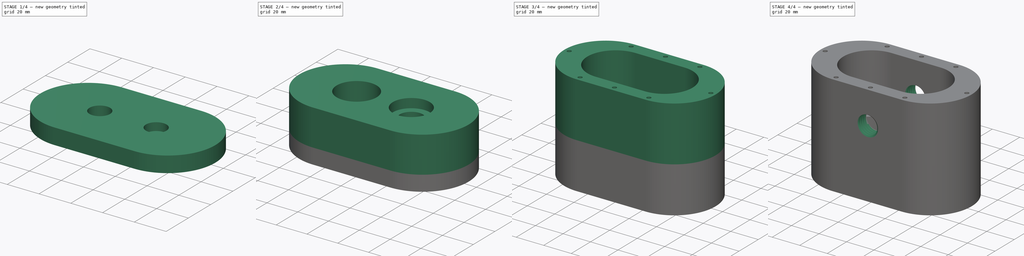
[diagram: build sequence overview — one tinted view per stage of 4, left to right]
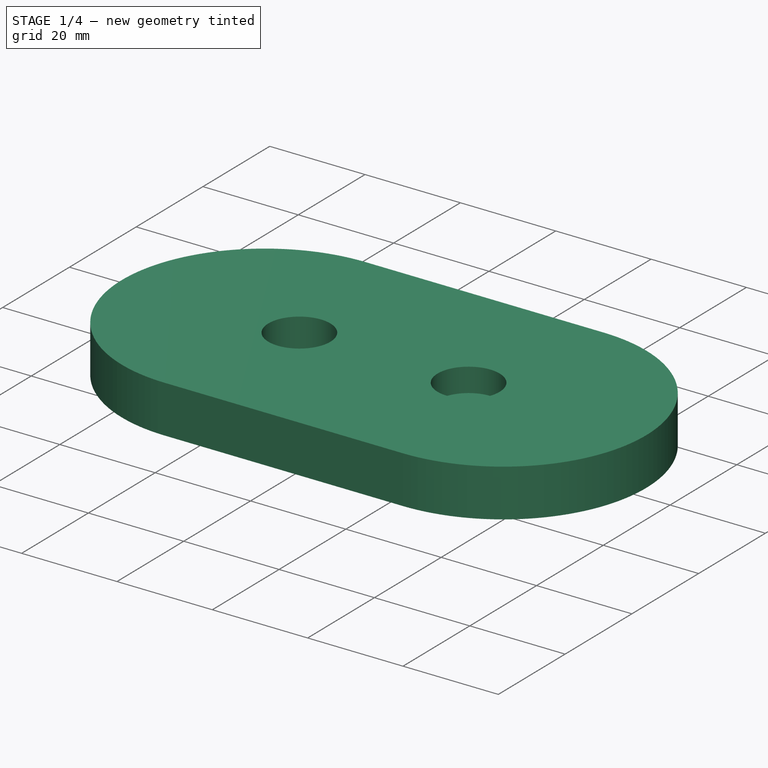
[diagram: stage 1 of 4 — iso view after this stage's code; geometry added in this stage tinted green]
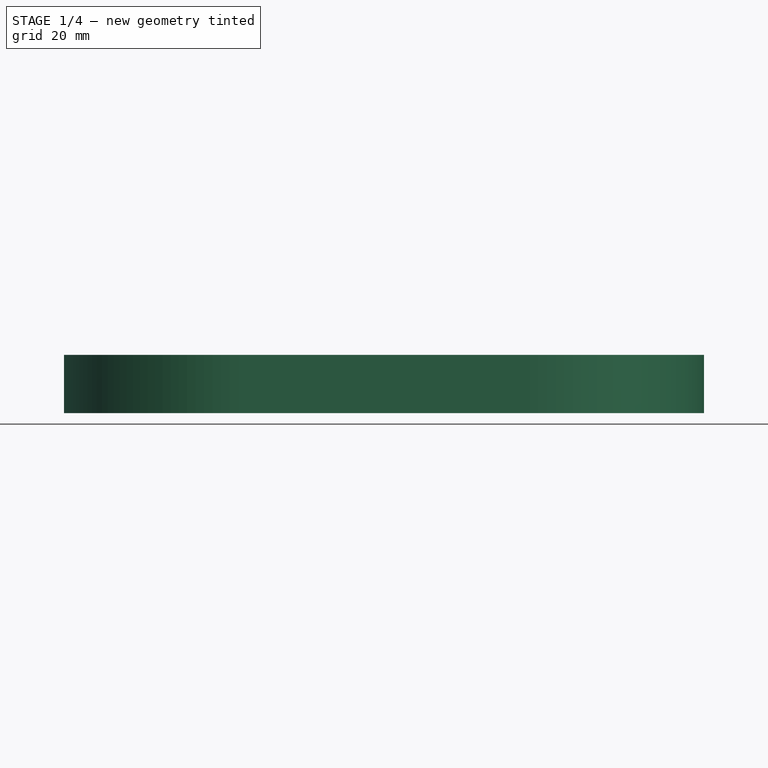
[diagram: stage 1 of 4 — front view after this stage's code; geometry added in this stage tinted green]
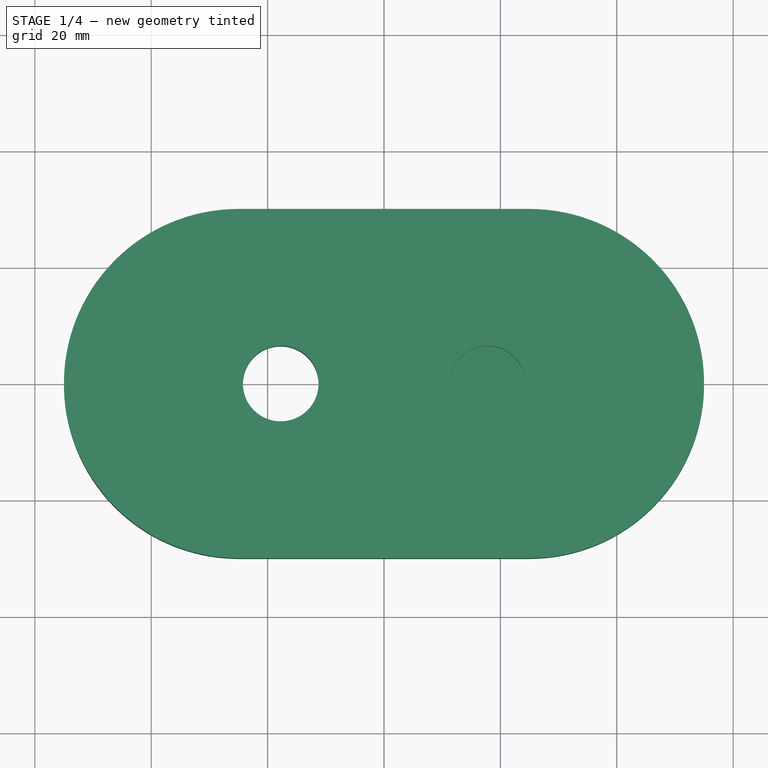
[diagram: stage 1 of 4 — top view after this stage's code; geometry added in this stage tinted green]
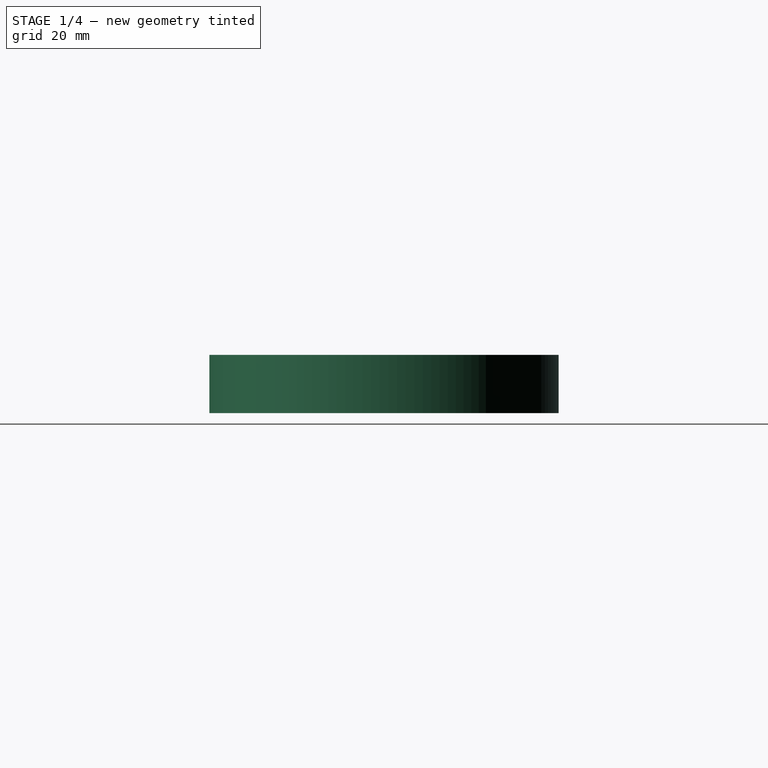
[diagram: stage 1 of 4 — right view after this stage's code; geometry added in this stage tinted green]
FCSTD DOCUMENT  (FreeCAD 0.17R13522 (Git))
Label: PumpBody
License: All rights reserved
LicenseURL: http://en.wikipedia.org/wiki/All_rights_reserved
objects: Sketcher::SketchObject×8, PartDesign::Pad×5, PartDesign::Pocket×2, PartDesign::Body×1, Part::FeaturePython×1, Part::Cut×1, App::Part×1
note: 25 computed .brp shape members not serialized (recipe doc carries the construction recipe); baked Part::Feature solids carry a one-line shape summary decoded from their .brp

FEATURE [Sketcher::SketchObject] Sketch
  MapMode = 5
  Support = -> [XY_Plane001]
  sketch-geometry (9):
    g0: ArcOfCircle CenterX=-25 CenterY=0 CenterZ=0 NormalX=0 NormalY=0 NormalZ=1 AngleXU=0 Radius=30 StartAngle=1.5708 EndAngle=4.71239
    g1: ArcOfCircle CenterX=25 CenterY=0 CenterZ=0 NormalX=0 NormalY=0 NormalZ=1 AngleXU=0 Radius=30 StartAngle=4.71239 EndAngle=7.85398
    g2: LineSegment StartX=-25 StartY=-30 StartZ=0 EndX=25 EndY=-30 EndZ=0
    g3: LineSegment StartX=-25 StartY=30 StartZ=0 EndX=25 EndY=30 EndZ=0
    g4: Circle CenterX=-17.75 CenterY=0 CenterZ=0 NormalX=0 NormalY=0 NormalZ=1 AngleXU=0 Radius=6.5
    g5: Circle [constr] CenterX=-17.75 CenterY=0 CenterZ=0 NormalX=0 NormalY=0 NormalZ=1 AngleXU=0 Radius=15.5
    g6: Circle [constr] CenterX=-17.75 CenterY=0 CenterZ=0 NormalX=0 NormalY=0 NormalZ=1 AngleXU=0 Radius=20
    g7: Circle [constr] CenterX=17.75 CenterY=0 CenterZ=0 NormalX=0 NormalY=0 NormalZ=1 AngleXU=0 Radius=15.5
    g8: Circle [constr] CenterX=17.75 CenterY=0 CenterZ=0 NormalX=0 NormalY=0 NormalZ=1 AngleXU=0 Radius=20
  constraints (22):
    c: Tangent(g0,g3) = 1.5708
    c: Tangent(g0,g2) = -1.5708
    c: Tangent(g2,g1) = -1.5708
    c: Tangent(g3,g1) = 1.5708
    c: Horizontal(g2)
    c: Equal(g0,g1)
    c: PointOnObject(g0,g-1)
    c: Symmetric(g0,g1,g-1)
    c: DistanceX(g0,g1) = 50
    c: DistanceY(g1,g1) = 60
    c: Radius(g4) = 6.5
    c: Coincident(g5,g4)
    c: Coincident(g6,g4)
    c: PointOnObject(g7,g-1)
    c: Coincident(g8,g7)
    c: Equal(g7,g5)
    c: Equal(g8,g6)
    c: PointOnObject(g4,g-1)
    c: Symmetric(g4,g7,g-1)
    c: Radius(g6) = 20
    c: Radius(g5) = 15.5
    c: Tangent(g5,g8)
FEATURE [PartDesign::Pad] Pad
  Length = 5
  Length2 = 100
  Profile = -> Sketch
  Type = 0
FEATURE [Sketcher::SketchObject] Sketch003
  MapMode = 5
  Placement = pos=(0,0,24.5) rot=(0,0,1;0rad)
  sketch-geometry (6):
    g0: Circle CenterX=17.75 CenterY=0 CenterZ=0 NormalX=0 NormalY=0 NormalZ=1 AngleXU=0 Radius=12
    g1: Circle CenterX=-17.75 CenterY=0 CenterZ=0 NormalX=0 NormalY=0 NormalZ=1 AngleXU=0 Radius=13
    g2: ArcOfCircle CenterX=-25 CenterY=0 CenterZ=0 NormalX=0 NormalY=0 NormalZ=1 AngleXU=0 Radius=30 StartAngle=1.5708 EndAngle=4.71239
    g3: ArcOfCircle CenterX=25 CenterY=0 CenterZ=0 NormalX=0 NormalY=0 NormalZ=1 AngleXU=0 Radius=30 StartAngle=4.71239 EndAngle=7.85398
    g4: LineSegment StartX=-25 StartY=-30 StartZ=0 EndX=25 EndY=-30 EndZ=0
    g5: LineSegment StartX=-25 StartY=30 StartZ=0 EndX=25 EndY=30 EndZ=0
  constraints (7):
    c: Radius(g0) = 12
    c: Tangent(g2,g5) = 1.5708
    c: Tangent(g2,g4) = -1.5708
    c: Tangent(g4,g3) = -1.5708
    c: Tangent(g5,g3) = 1.5708
    c: Horizontal(g4)
    c: Equal(g2,g3)
FEATURE [PartDesign::Body] Body
  Group = -> [Sketch003]
  Origin = -> Origin001
FEATURE [Sketcher::SketchObject] Sketch004
  ExternalGeometry = -> [Pad]
  MapMode = 5
  Placement = pos=(0,0,5) rot=(0,0,1;0rad)
  Support = -> [Pad]
  sketch-geometry (8):
    g0: ArcOfCircle CenterX=-25 CenterY=0 CenterZ=0 NormalX=0 NormalY=0 NormalZ=1 AngleXU=0 Radius=30 StartAngle=1.5708 EndAngle=4.71239
    g1: ArcOfCircle CenterX=25 CenterY=8e-12 CenterZ=0 NormalX=0 NormalY=0 NormalZ=1 AngleXU=0 Radius=30 StartAngle=4.71239 EndAngle=7.85398
    g2: LineSegment StartX=-25 StartY=-30 StartZ=0 EndX=25 EndY=-30 EndZ=0
    g3: LineSegment StartX=-25 StartY=30 StartZ=0 EndX=25 EndY=30 EndZ=0
    g4: Circle CenterX=17.75 CenterY=0 CenterZ=0 NormalX=0 NormalY=0 NormalZ=1 AngleXU=0 Radius=6.5
    g5: Circle CenterX=-17.75 CenterY=0 CenterZ=0 NormalX=0 NormalY=0 NormalZ=1 AngleXU=0 Radius=6.5
    g6: Circle [constr] CenterX=-17.75 CenterY=0 CenterZ=0 NormalX=0 NormalY=0 NormalZ=1 AngleXU=0 Radius=15.5
    g7: Circle [constr] CenterX=17.75 CenterY=0 CenterZ=0 NormalX=0 NormalY=0 NormalZ=1 AngleXU=0 Radius=20
  constraints (17):
    c: Tangent(g0,g3) = 1.5708
    c: Tangent(g0,g2) = -1.5708
    c: Tangent(g2,g1) = -1.5708
    c: Tangent(g3,g1) = 1.5708
    c: Horizontal(g2)
    c: Equal(g0,g1)
    c: Coincident(g0,g-3)
    c: Coincident(g1,g-4)
    c: PointOnObject(g4,g-1)
    c: Coincident(g5,g-5)
    c: Equal(g5,g-5)
    c: Coincident(g6,g5)
    c: Coincident(g7,g4)
    c: Tangent(g7,g6)
    c: Radius(g7) = 20
    c: Radius(g6) = 15.5
    c: Equal(g4,g5)
FEATURE [PartDesign::Pad] Pad001
  BaseFeature = -> Pad
  Length = 5
  Length2 = 100
  Profile = -> Sketch004
  Type = 0
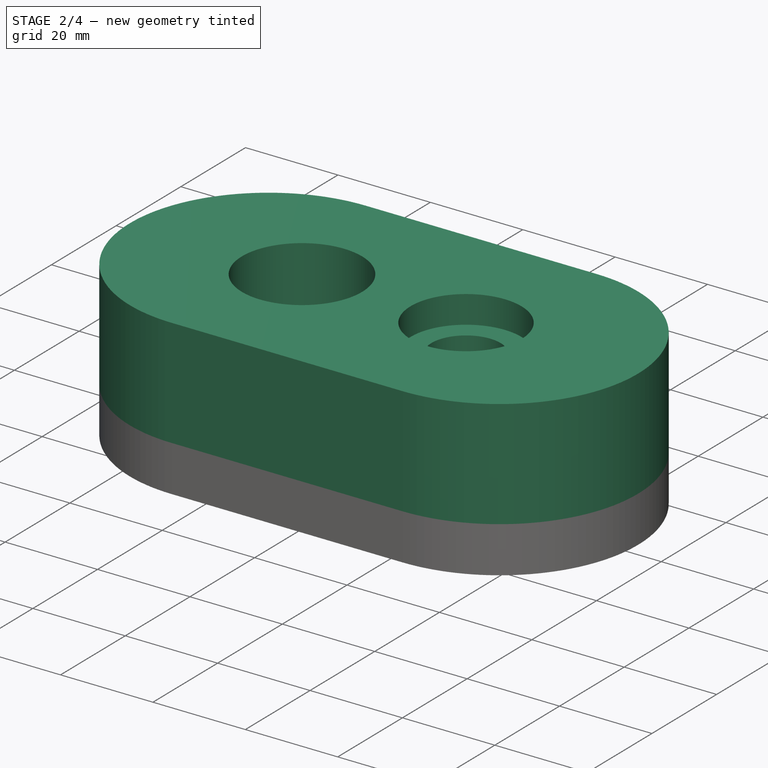
[diagram: stage 2 of 4 — iso view after this stage's code; geometry added in this stage tinted green]
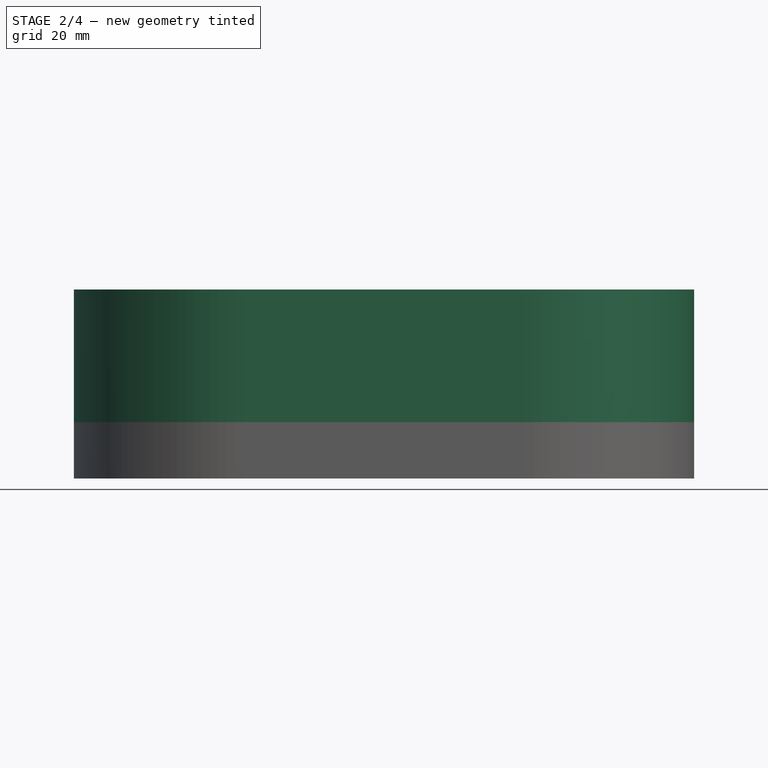
[diagram: stage 2 of 4 — front view after this stage's code; geometry added in this stage tinted green]
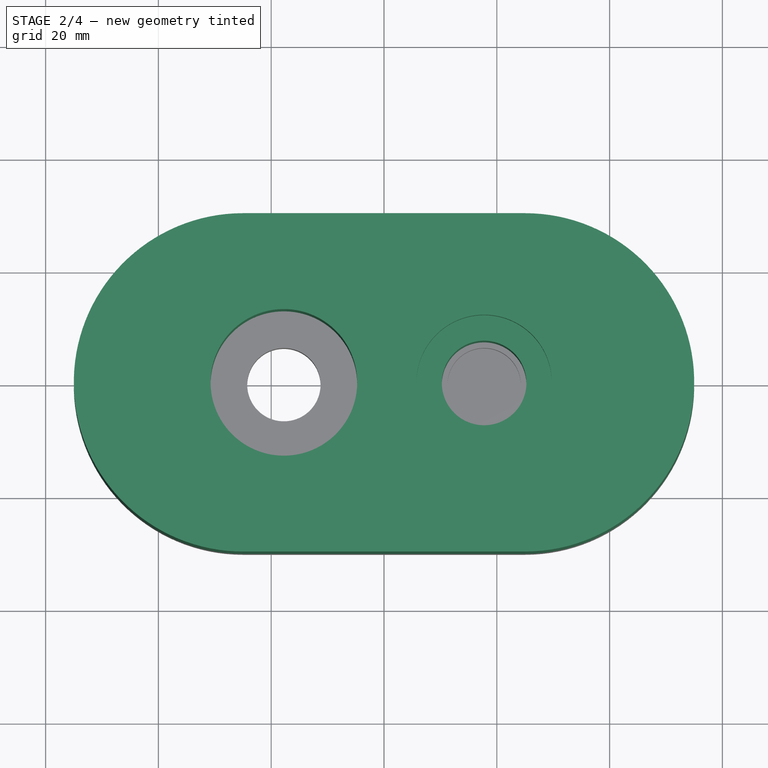
[diagram: stage 2 of 4 — top view after this stage's code; geometry added in this stage tinted green]
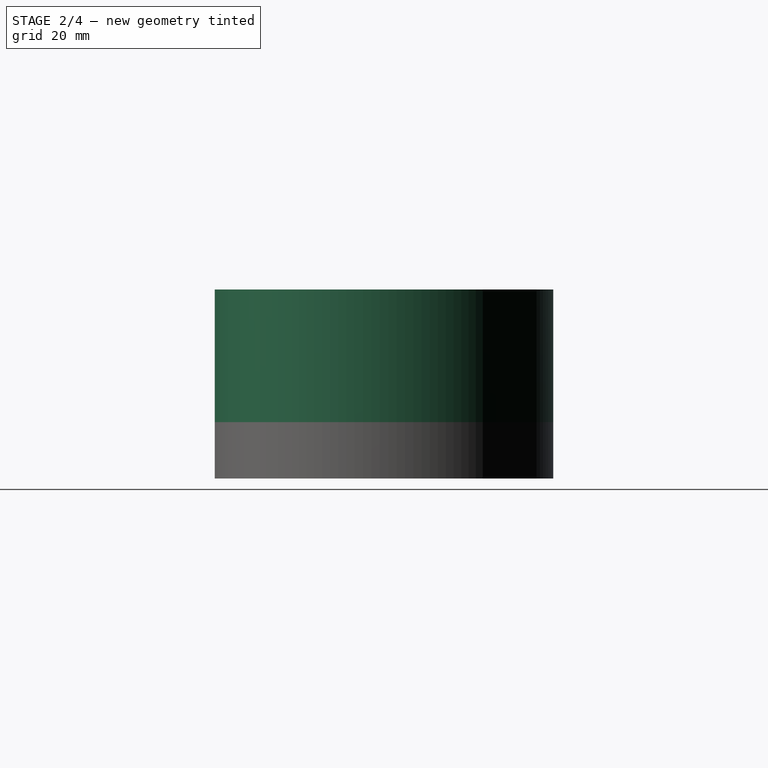
[diagram: stage 2 of 4 — right view after this stage's code; geometry added in this stage tinted green]
FEATURE [Sketcher::SketchObject] Sketch002
  MapMode = 5
  Placement = pos=(0,0,10) rot=(0,0,1;0rad)
  Support = -> [Pad001]
  sketch-geometry (6):
    g0: ArcOfCircle CenterX=-25 CenterY=0 CenterZ=0 NormalX=0 NormalY=0 NormalZ=1 AngleXU=0 Radius=30 StartAngle=1.5708 EndAngle=4.71239
    g1: ArcOfCircle CenterX=25 CenterY=0 CenterZ=0 NormalX=0 NormalY=0 NormalZ=1 AngleXU=0 Radius=30 StartAngle=4.71239 EndAngle=7.85398
    g2: LineSegment StartX=-25 StartY=-30 StartZ=0 EndX=25 EndY=-30 EndZ=0
    g3: LineSegment StartX=-25 StartY=30 StartZ=0 EndX=25 EndY=30 EndZ=0
    g4: Circle CenterX=-17.75 CenterY=0 CenterZ=0 NormalX=0 NormalY=0 NormalZ=1 AngleXU=0 Radius=13
    g5: Circle CenterX=17.75 CenterY=2.3e-11 CenterZ=0 NormalX=0 NormalY=0 NormalZ=1 AngleXU=0 Radius=7.5
  constraints (7):
    c: Tangent(g0,g3) = 1.5708
    c: Tangent(g0,g2) = -1.5708
    c: Tangent(g2,g1) = -1.5708
    c: Tangent(g3,g1) = 1.5708
    c: Horizontal(g2)
    c: Equal(g0,g1)
    c: Radius(g4) = 13
FEATURE [PartDesign::Pad] Pad002
  BaseFeature = -> Pad001
  Length = 17.5
  Length2 = 100
  Profile = -> Sketch002
  Type = 0
FEATURE [Sketcher::SketchObject] Sketch005
  ExternalGeometry = -> [Pad002]
  MapMode = 5
  Placement = pos=(0,0,27.5) rot=(0,0,1;0rad)
  Support = -> [Pad002]
  sketch-geometry (6):
    g0: Circle CenterX=-17.75 CenterY=0 CenterZ=0 NormalX=0 NormalY=0 NormalZ=1 AngleXU=0 Radius=13
    g1: Circle CenterX=17.75 CenterY=2.3e-11 CenterZ=0 NormalX=0 NormalY=0 NormalZ=1 AngleXU=0 Radius=12
    g2: ArcOfCircle CenterX=-25 CenterY=0 CenterZ=0 NormalX=0 NormalY=0 NormalZ=1 AngleXU=0 Radius=30 StartAngle=1.5708 EndAngle=4.71239
    g3: ArcOfCircle CenterX=25 CenterY=0 CenterZ=0 NormalX=0 NormalY=0 NormalZ=1 AngleXU=0 Radius=30 StartAngle=4.71239 EndAngle=7.85398
    g4: LineSegment StartX=-25 StartY=-30 StartZ=0 EndX=25 EndY=-30 EndZ=0
    g5: LineSegment StartX=-25 StartY=30 StartZ=0 EndX=25 EndY=30 EndZ=0
  constraints (12):
    c: Coincident(g0,g-5)
    c: Equal(g0,g-5)
    c: Coincident(g1,g-6)
    c: Radius(g1) = 12
    c: Tangent(g2,g5) = 1.5708
    c: Tangent(g2,g4) = -1.5708
    c: Tangent(g4,g3) = -1.5708
    c: Tangent(g5,g3) = 1.5708
    c: Horizontal(g4)
    c: Equal(g2,g3)
    c: Coincident(g2,g-3)
    c: Coincident(g3,g-4)
FEATURE [PartDesign::Pad] Pad003
  Length = 6
  Length2 = 100
  Profile = -> Sketch005
  Type = 0
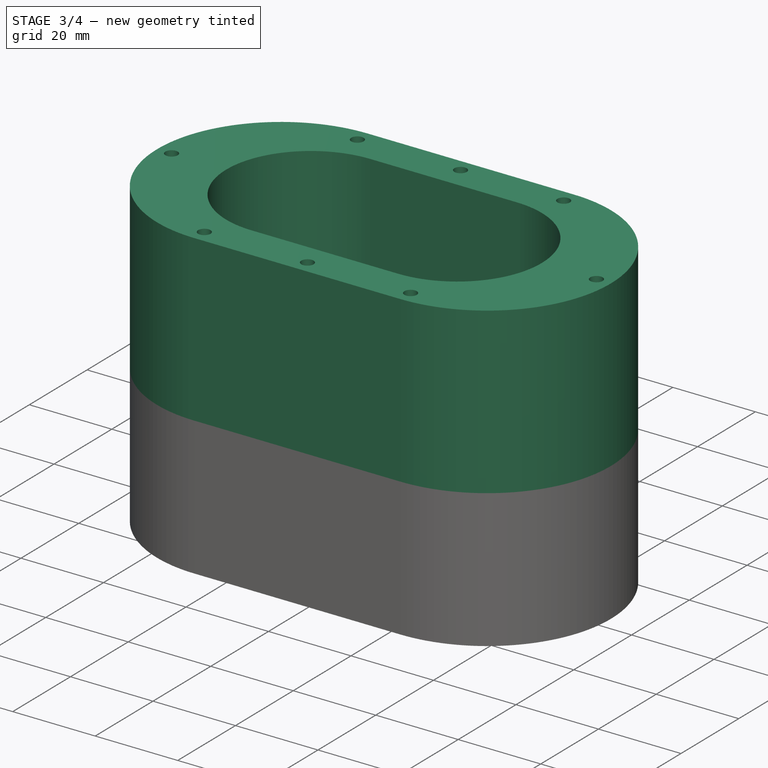
[diagram: stage 3 of 4 — iso view after this stage's code; geometry added in this stage tinted green]
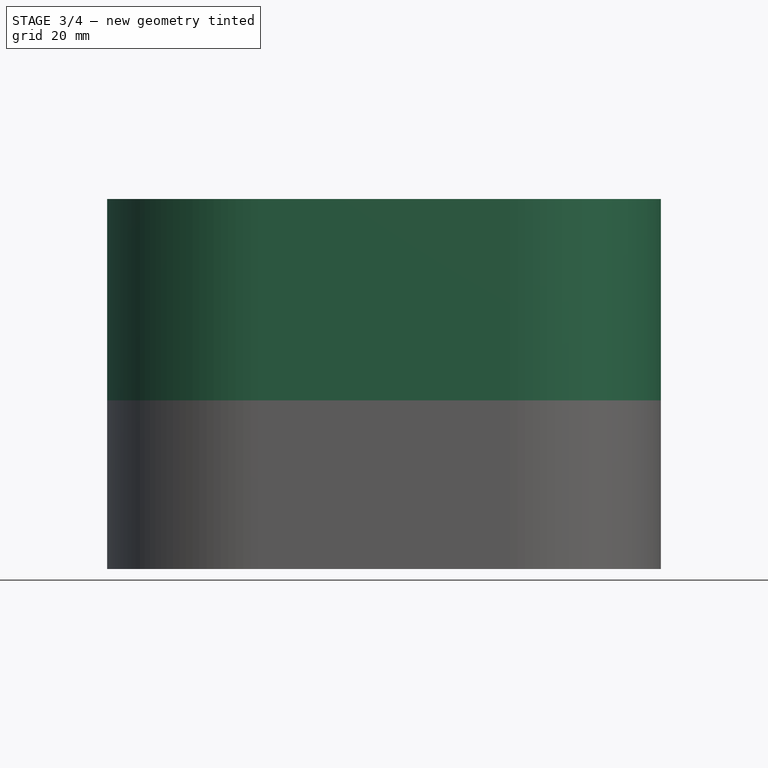
[diagram: stage 3 of 4 — front view after this stage's code; geometry added in this stage tinted green]
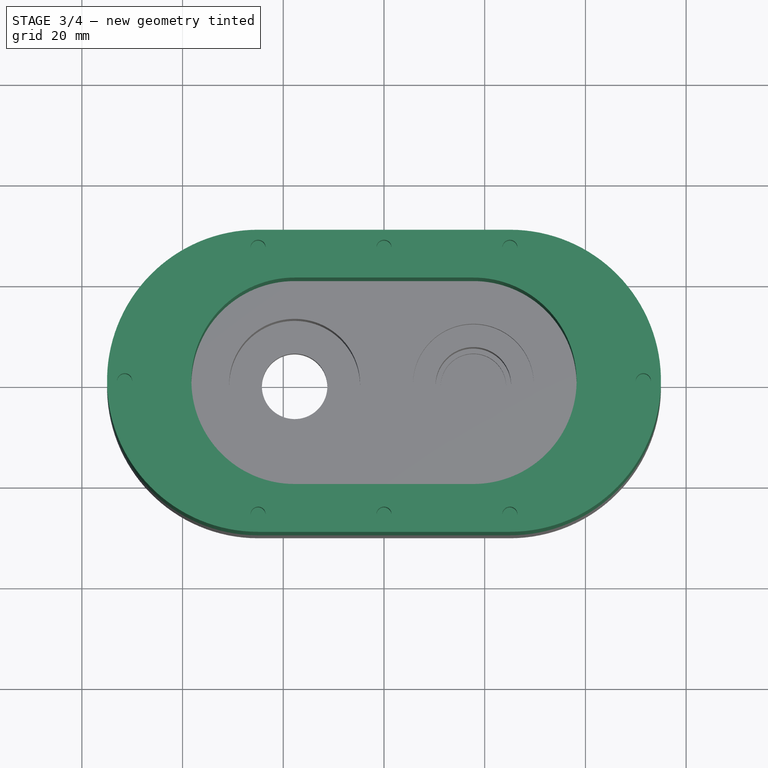
[diagram: stage 3 of 4 — top view after this stage's code; geometry added in this stage tinted green]
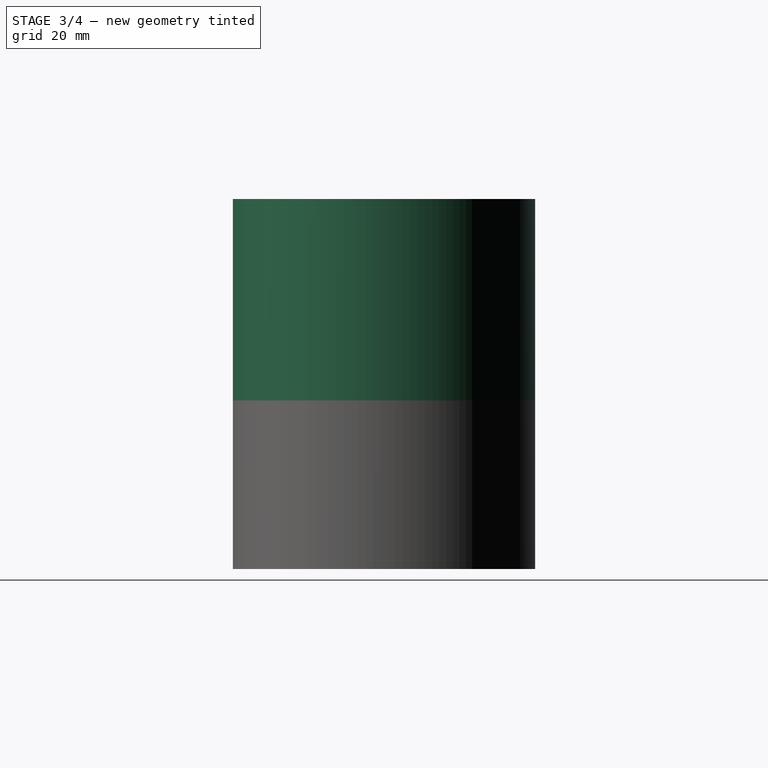
[diagram: stage 3 of 4 — right view after this stage's code; geometry added in this stage tinted green]
FEATURE [Sketcher::SketchObject] Sketch006
  ExternalGeometry = -> [Pad003]
  MapMode = 5
  Placement = pos=(0,0,33.5) rot=(0,0,1;0rad)
  Support = -> [Pad003]
  sketch-geometry (8):
    g0: ArcOfCircle CenterX=-25 CenterY=0 CenterZ=0 NormalX=0 NormalY=0 NormalZ=1 AngleXU=0 Radius=30 StartAngle=1.5708 EndAngle=4.71239
    g1: ArcOfCircle CenterX=25 CenterY=0 CenterZ=0 NormalX=0 NormalY=0 NormalZ=1 AngleXU=0 Radius=30 StartAngle=4.71239 EndAngle=7.85398
    g2: LineSegment StartX=-25 StartY=-30 StartZ=0 EndX=25 EndY=-30 EndZ=0
    g3: LineSegment StartX=-25 StartY=30 StartZ=0 EndX=25 EndY=30 EndZ=0
    g4: ArcOfCircle CenterX=-17.75 CenterY=0 CenterZ=0 NormalX=0 NormalY=0 NormalZ=1 AngleXU=0 Radius=20.5 StartAngle=1.5708 EndAngle=4.71239
    g5: ArcOfCircle CenterX=17.75 CenterY=0 CenterZ=0 NormalX=0 NormalY=0 NormalZ=1 AngleXU=0 Radius=20.5 StartAngle=4.71239 EndAngle=7.85398
    g6: LineSegment StartX=-17.75 StartY=-20.5 StartZ=0 EndX=17.75 EndY=-20.5 EndZ=0
    g7: LineSegment StartX=-17.75 StartY=20.5 StartZ=0 EndX=17.75 EndY=20.5 EndZ=0
  constraints (17):
    c: Tangent(g0,g3) = 1.5708
    c: Tangent(g0,g2) = -1.5708
    c: Tangent(g2,g1) = -1.5708
    c: Tangent(g3,g1) = 1.5708
    c: Horizontal(g2)
    c: Equal(g0,g1)
    c: Coincident(g0,g-3)
    c: Coincident(g1,g-4)
    c: Tangent(g4,g7) = 1.5708
    c: Tangent(g4,g6) = -1.5708
    c: Tangent(g6,g5) = -1.5708
    c: Tangent(g7,g5) = 1.5708
    c: Horizontal(g6)
    c: Equal(g4,g5)
    c: Coincident(g4,g-5)
    c: Coincident(g5,g-6)
    c: DistanceY(g5,g5) = 41
FEATURE [PartDesign::Pad] Pad004
  Length = 40
  Length2 = 100
  Profile = -> Sketch006
  Type = 0
FEATURE [Sketcher::SketchObject] Sketch007
  ExternalGeometry = -> [Pad004]
  MapMode = 5
  Placement = pos=(0,0,73.5) rot=(0,0,1;0rad)
  Support = -> [Pad004]
  sketch-geometry (16):
    g0: ArcOfCircle [constr] CenterX=-25 CenterY=0 CenterZ=0 NormalX=0 NormalY=0 NormalZ=1 AngleXU=0 Radius=26.5 StartAngle=1.5708 EndAngle=4.71239
    g1: ArcOfCircle [constr] CenterX=25 CenterY=0 CenterZ=0 NormalX=0 NormalY=0 NormalZ=1 AngleXU=0 Radius=26.5 StartAngle=4.71239 EndAngle=7.85398
    g2: LineSegment [constr] StartX=-25 StartY=-26.5 StartZ=0 EndX=25 EndY=-26.5 EndZ=0
    g3: LineSegment [constr] StartX=-25 StartY=26.5 StartZ=0 EndX=25 EndY=26.5 EndZ=0
    g4: LineSegment [constr] StartX=-25 StartY=26.5 StartZ=0 EndX=-25 EndY=30 EndZ=0
    g5: LineSegment [constr] StartX=25 StartY=-26.5 StartZ=0 EndX=25 EndY=-30 EndZ=0
    g6: LineSegment [constr] StartX=-51.5 StartY=0 StartZ=0 EndX=-55 EndY=0 EndZ=0
    g7: LineSegment [constr] StartX=51.5 StartY=0 StartZ=0 EndX=55 EndY=0 EndZ=0
    g8: Circle CenterX=-25 CenterY=26.5 CenterZ=0 NormalX=0 NormalY=0 NormalZ=1 AngleXU=0 Radius=1.5
    g9: Circle CenterX=25 CenterY=26.5 CenterZ=0 NormalX=0 NormalY=0 NormalZ=1 AngleXU=0 Radius=1.5
    g10: Circle CenterX=51.5 CenterY=0 CenterZ=0 NormalX=0 NormalY=0 NormalZ=1 AngleXU=0 Radius=1.5
    g11: Circle CenterX=25 CenterY=-26.5 CenterZ=0 NormalX=0 NormalY=0 NormalZ=1 AngleXU=0 Radius=1.5
    g12: Circle CenterX=-25 CenterY=-26.5 CenterZ=0 NormalX=0 NormalY=0 NormalZ=1 AngleXU=0 Radius=1.5
    g13: Circle CenterX=-51.5 CenterY=0 CenterZ=0 NormalX=0 NormalY=0 NormalZ=1 AngleXU=0 Radius=1.5
    g14: Circle CenterX=0 CenterY=26.5 CenterZ=0 NormalX=0 NormalY=0 NormalZ=1 AngleXU=0 Radius=1.5
    g15: Circle CenterX=0 CenterY=-26.5 CenterZ=0 NormalX=0 NormalY=0 NormalZ=1 AngleXU=0 Radius=1.5
  constraints (43):
    c: Tangent(g0,g3) = 1.5708
    c: Tangent(g0,g2) = -1.5708
    c: Tangent(g2,g1) = -1.5708
    c: Tangent(g3,g1) = 1.5708
    c: Horizontal(g2)
    c: Equal(g0,g1)
    c: PointOnObject(g0,g-1)
    c: Coincident(g4,g0)
    c: PointOnObject(g4,g-3)
    c: Vertical(g4)
    c: Coincident(g5,g1)
    c: PointOnObject(g5,g-4)
    c: Vertical(g5)
    c: Equal(g5,g4)
    c: PointOnObject(g6,g0)
    c: PointOnObject(g6,g-5)
    c: Horizontal(g6)
    c: PointOnObject(g6,g-1)
    c: DistanceY(g4,g4) = 3.5
    c: DistanceX(g6,g6) = 3.5
    c: PointOnObject(g7,g1)
    c: PointOnObject(g7,g-6)
    c: Horizontal(g7)
    c: PointOnObject(g7,g-1)
    c: Equal(g6,g7)
    c: Coincident(g8,g0)
    c: Coincident(g9,g1)
    c: Coincident(g10,g7)
    c: Coincident(g11,g1)
    c: Coincident(g12,g0)
    c: Coincident(g13,g6)
    c: PointOnObject(g14,g3)
    c: PointOnObject(g15,g2)
    c: PointOnObject(g15,g-2)
    c: PointOnObject(g14,g-2)
    c: Equal(g12,g15)
    c: Equal(g15,g11)
    c: Equal(g11,g10)
    c: Equal(g10,g9)
    c: Equal(g9,g14)
    c: Equal(g14,g8)
    c: Equal(g8,g13)
    c: Radius(g9) = 1.5
FEATURE [PartDesign::Pocket] Pocket
  Length = 10
  Length2 = 100
  Profile = -> Sketch007
  Type = 0
FEATURE [Sketcher::SketchObject] Sketch008
  ExternalGeometry = -> [Pocket]
  MapMode = 5
  Placement = pos=(0,0,0) rot=(1,0,0;3.14159rad)
  Support = -> [Pocket]
  sketch-geometry (25):
    g0: ArcOfCircle [constr] CenterX=-25 CenterY=0 CenterZ=0 NormalX=0 NormalY=0 NormalZ=1 AngleXU=0 Radius=27.5 StartAngle=1.5708 EndAngle=4.71239
    g1: ArcOfCircle [constr] CenterX=25 CenterY=0 CenterZ=0 NormalX=0 NormalY=0 NormalZ=1 AngleXU=0 Radius=27.5 StartAngle=4.71239 EndAngle=7.85398
    g2: LineSegment [constr] StartX=-25 StartY=-27.5 StartZ=0 EndX=25 EndY=-27.5 EndZ=0
    g3: LineSegment [constr] StartX=-25 StartY=27.5 StartZ=0 EndX=25 EndY=27.5 EndZ=0
    g4: LineSegment [constr] StartX=-25 StartY=27.5 StartZ=0 EndX=-25 EndY=30 EndZ=0
    g5: LineSegment [constr] StartX=25 StartY=-27.5 StartZ=0 EndX=25 EndY=-30 EndZ=0
    g6: LineSegment [constr] StartX=-52.5 StartY=-8.5196e-08 StartZ=0 EndX=-55 EndY=-8.5196e-08 EndZ=0
    g7: LineSegment [constr] StartX=52.5 StartY=0 StartZ=0 EndX=55 EndY=0 EndZ=0
    g8: Circle CenterX=-25 CenterY=27.5 CenterZ=0 NormalX=0 NormalY=0 NormalZ=1 AngleXU=0 Radius=1.5
    g9: Circle CenterX=0 CenterY=27.5 CenterZ=0 NormalX=0 NormalY=0 NormalZ=1 AngleXU=0 Radius=1.5
    g10: Circle CenterX=25 CenterY=27.5 CenterZ=0 NormalX=0 NormalY=0 NormalZ=1 AngleXU=0 Radius=1.5
    g11: Circle CenterX=52.5 CenterY=0 CenterZ=0 NormalX=0 NormalY=0 NormalZ=1 AngleXU=0 Radius=0
    g12: Circle CenterX=52.5 CenterY=0 CenterZ=0 NormalX=0 NormalY=0 NormalZ=1 AngleXU=0 Radius=1.5
    g13: Circle CenterX=25 CenterY=-27.5 CenterZ=0 NormalX=0 NormalY=0 NormalZ=1 AngleXU=0 Radius=1.5
    g14: Circle CenterX=0 CenterY=-27.5 CenterZ=0 NormalX=0 NormalY=0 NormalZ=1 AngleXU=0 Radius=1.5
    g15: Circle CenterX=-25 CenterY=-27.5 CenterZ=0 NormalX=0 NormalY=0 NormalZ=1 AngleXU=0 Radius=1.5
    g16: Circle CenterX=-52.5 CenterY=-8.5196e-08 CenterZ=0 NormalX=0 NormalY=0 NormalZ=1 AngleXU=0 Radius=1.5
    g17: Circle CenterX=-44.4454 CenterY=19.4454 CenterZ=0 NormalX=0 NormalY=0 NormalZ=1 AngleXU=0 Radius=1.5
    g18: Circle CenterX=-44.4454 CenterY=-19.4454 CenterZ=0 NormalX=0 NormalY=0 NormalZ=1 AngleXU=0 Radius=1.5
    g19: Circle CenterX=44.4454 CenterY=19.4454 CenterZ=0 NormalX=0 NormalY=0 NormalZ=1 AngleXU=0 Radius=1.5
    g20: Circle CenterX=44.4454 CenterY=-19.4454 CenterZ=0 NormalX=0 NormalY=0 NormalZ=1 AngleXU=0 Radius=1.5
    g21: LineSegment [constr] StartX=-44.4454 StartY=19.4454 StartZ=0 EndX=-25 EndY=0 EndZ=0
    g22: LineSegment [constr] StartX=-44.4454 StartY=-19.4454 StartZ=0 EndX=-25 EndY=0 EndZ=0
    g23: LineSegment [constr] StartX=25 StartY=0 StartZ=0 EndX=44.4454 EndY=19.4454 EndZ=0
    g24: LineSegment [constr] StartX=25 StartY=0 StartZ=0 EndX=44.4454 EndY=-19.4454 EndZ=0
  constraints (63):
    c: Tangent(g0,g3) = 1.5708
    c: Tangent(g0,g2) = -1.5708
    c: Tangent(g2,g1) = -1.5708
    c: Tangent(g3,g1) = 1.5708
    c: Horizontal(g2)
    c: Equal(g0,g1)
    c: PointOnObject(g0,g-1)
    c: Coincident(g4,g0)
    c: Vertical(g4)
    c: Coincident(g5,g1)
    c: Vertical(g5)
    c: PointOnObject(g6,g0)
    c: PointOnObject(g6,g-4)
    c: PointOnObject(g7,g1)
    c: PointOnObject(g7,g-6)
    c: Horizontal(g7)
    c: Horizontal(g6)
    c: Coincident(g4,g-4)
    c: Coincident(g5,g-6)
    c: Equal(g6,g7)
    c: PointOnObject(g7,g-1)
    c: Equal(g5,g4)
    c: DistanceY(g4,g4) = 2.5
    c: Coincident(g8,g0)
    c: PointOnObject(g9,g3)
    c: Coincident(g10,g1)
    c: Coincident(g11,g7)
    c: Tangent(g11,g1)
    c: Coincident(g12,g7)
    c: Coincident(g13,g1)
    c: PointOnObject(g14,g2)
    c: Coincident(g15,g0)
    c: Coincident(g16,g6)
    c: PointOnObject(g14,g-2)
    c: PointOnObject(g9,g-2)
    c: Equal(g8,g9)
    c: Equal(g9,g10)
    c: Equal(g10,g12)
    c: Equal(g12,g13)
    c: Equal(g13,g14)
    c: Equal(g14,g15)
    c: Equal(g15,g16)
    c: Radius(g10) = 1.5
    c: PointOnObject(g17,g0)
    c: PointOnObject(g18,g0)
    c: PointOnObject(g19,g1)
    c: PointOnObject(g20,g1)
    c: Radius(g18) = 1.5
    c: Equal(g18,g17)
    c: Equal(g18,g19)
    c: Equal(g18,g20)
    c: Coincident(g21,g17)
    c: Coincident(g21,g0)
    c: Coincident(g22,g18)
    c: Coincident(g22,g0)
    c: Angle(g21,g22) = 1.5708
    c: Angle(g-1,g21) = 2.35619
    c: Coincident(g23,g1)
    c: Coincident(g23,g19)
    c: Coincident(g24,g1)
    c: Coincident(g24,g20)
    c: Angle(g24,g23) = 1.5708
    c: Angle(g23,g-1) = 2.35619
FEATURE [PartDesign::Pocket] Pocket001
  Length = 10
  Length2 = 100
  Profile = -> Sketch008
  Type = 0
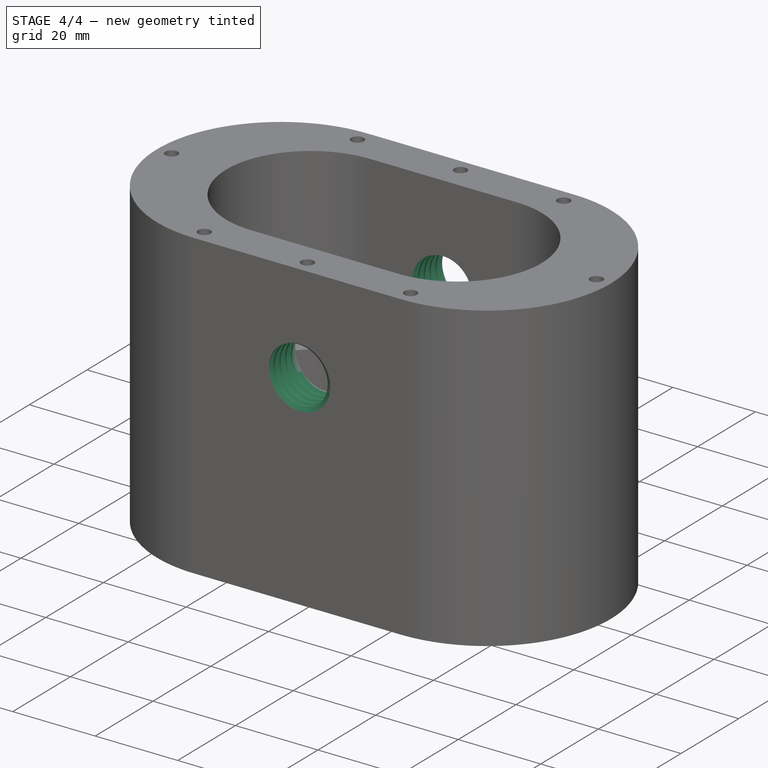
[diagram: stage 4 of 4 — iso view after this stage's code; geometry added in this stage tinted green]
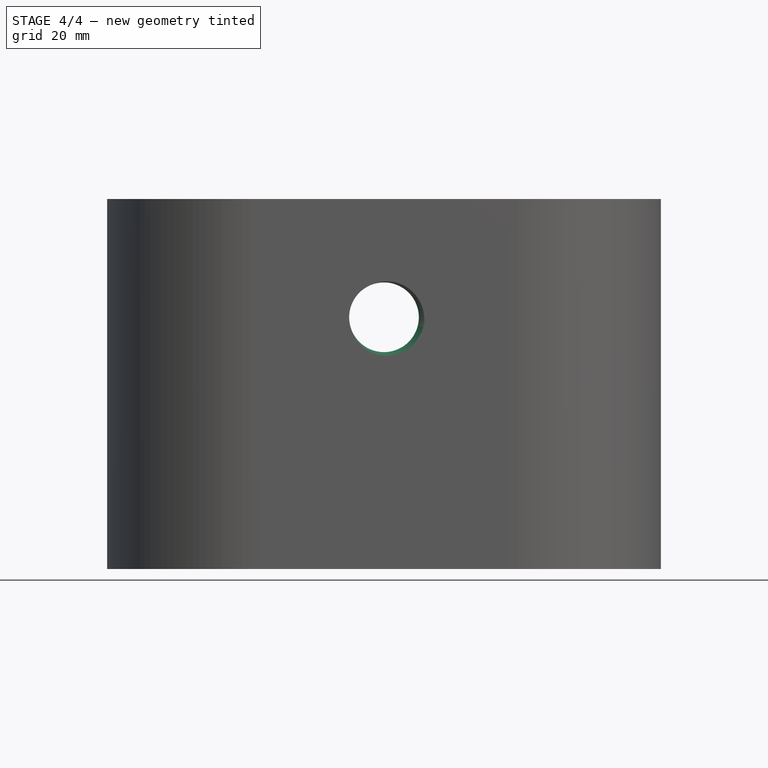
[diagram: stage 4 of 4 — front view after this stage's code; geometry added in this stage tinted green]
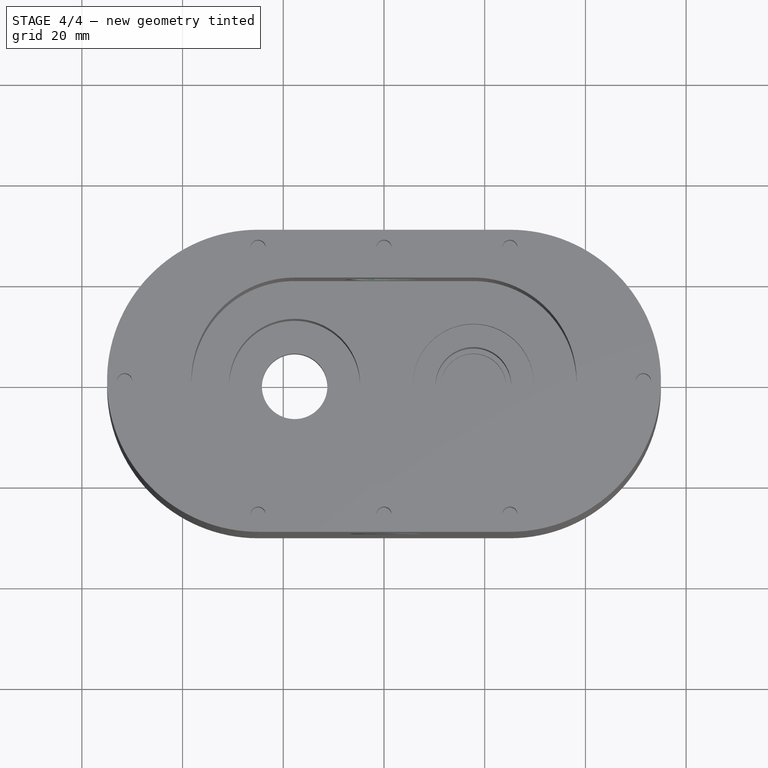
[diagram: stage 4 of 4 — top view after this stage's code; geometry added in this stage tinted green]
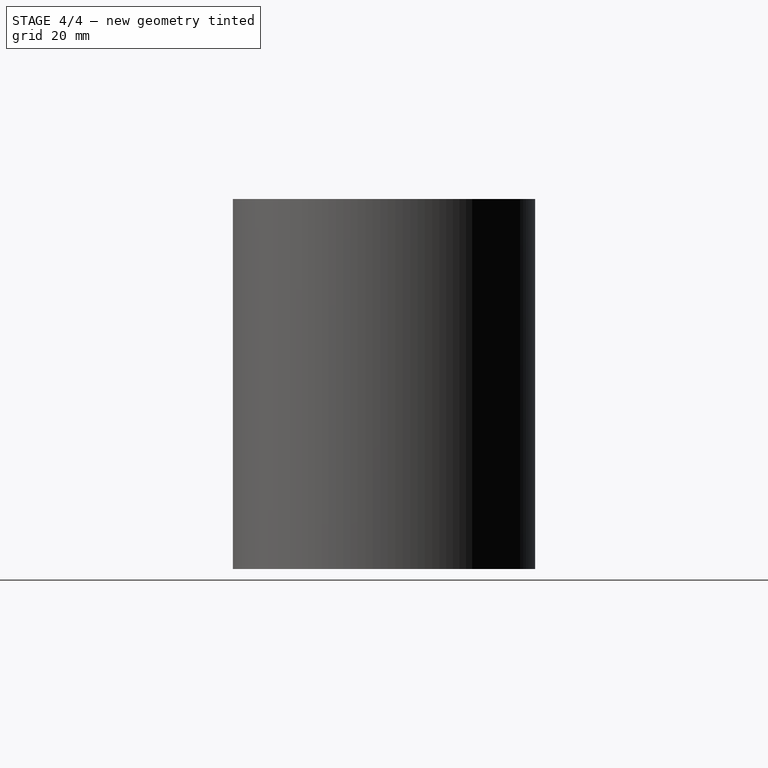
[diagram: stage 4 of 4 — right view after this stage's code; geometry added in this stage tinted green]
FEATURE [Part::FeaturePython] ScrewTap  label="M16x80.0-ScrewTap"  # Fasteners workbench fastener (typed FeaturePython)
  Placement = pos=(0,-40,50) rot=(1,0,0;1.5708rad)
  diameter = 13
  invert = false
  length = 80
  matchOuter = false
  offset = 0
  thread = true
FEATURE [Part::Cut] Cut
  Base = -> Pocket001
  Tool = -> ScrewTap
FEATURE [App::Part] Part  label="Base"
  Group = -> [Body,Pad002,Pad001,Sketch007,Sketch,Sketch002,Sketch004,Sketch006,Sketch005,Pad,Pad003,Pad004,Sketch008,Pocket,Pocket001,ScrewTap,Cut]
  License = CC BY 3.0
  LicenseURL = http://creativecommons.org/licenses/by/3.0/
  Origin = -> Origin
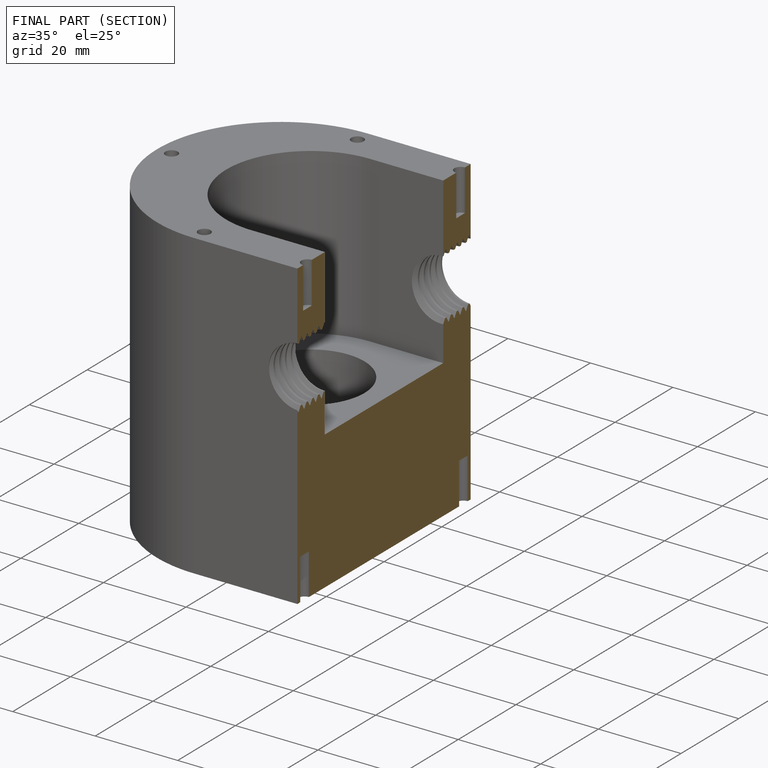
[diagram: finished part — half-section view (interior)]
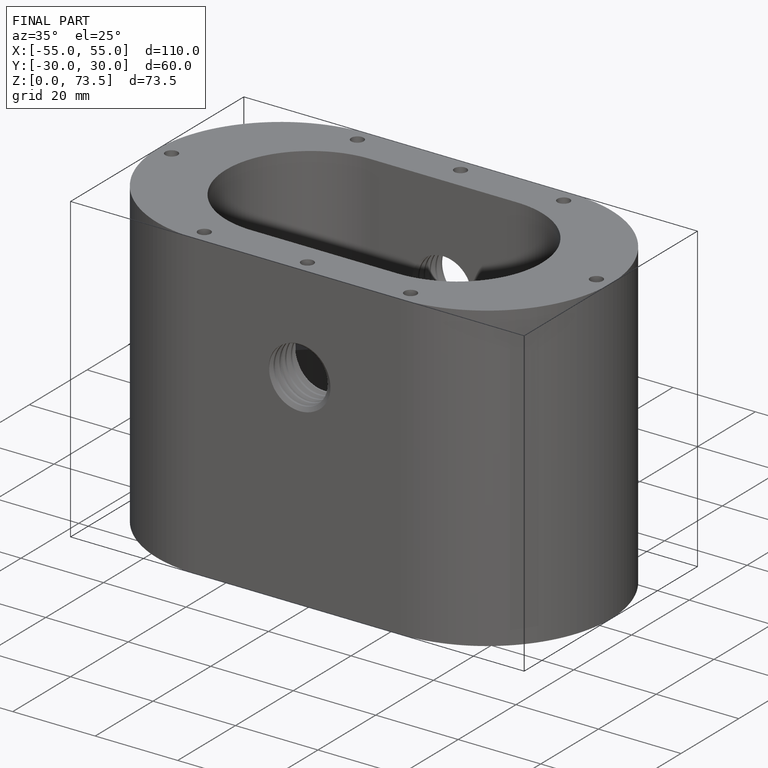
[diagram: finished part — iso view with bounding-box wireframe]
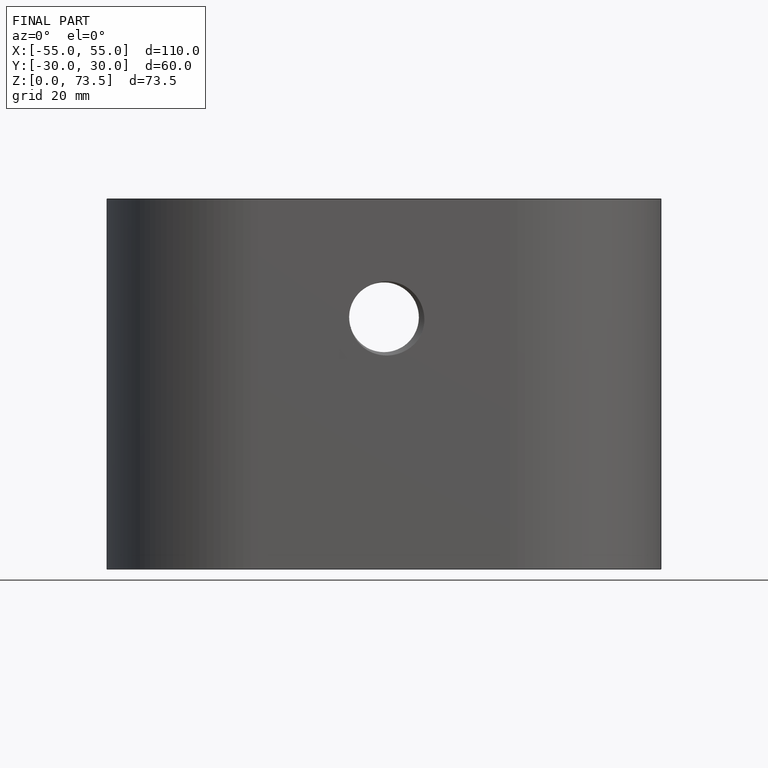
[diagram: finished part — front view with bounding-box wireframe]
